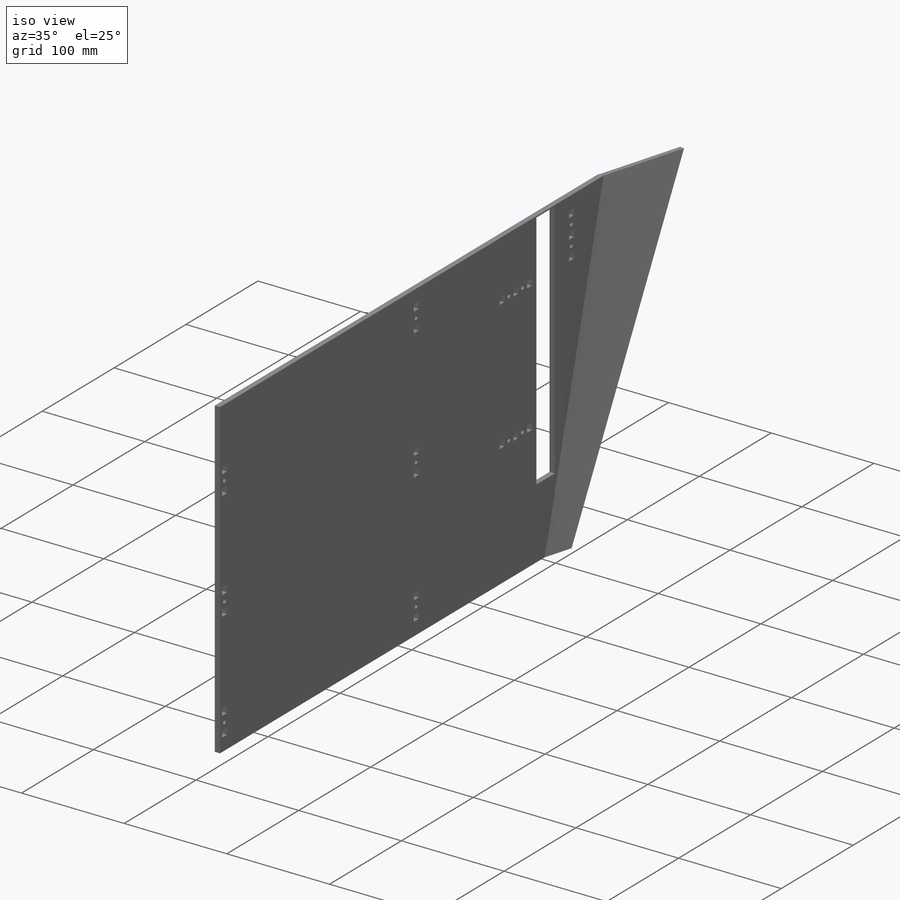
[diagram: iso view]
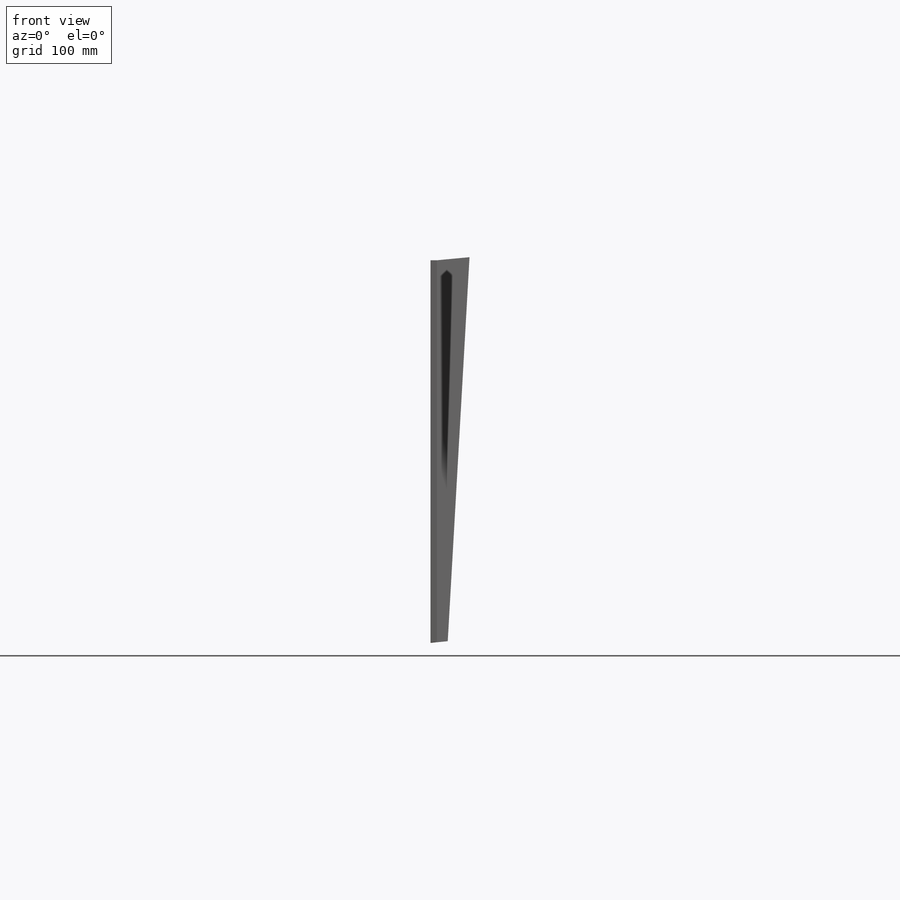
[diagram: front view]
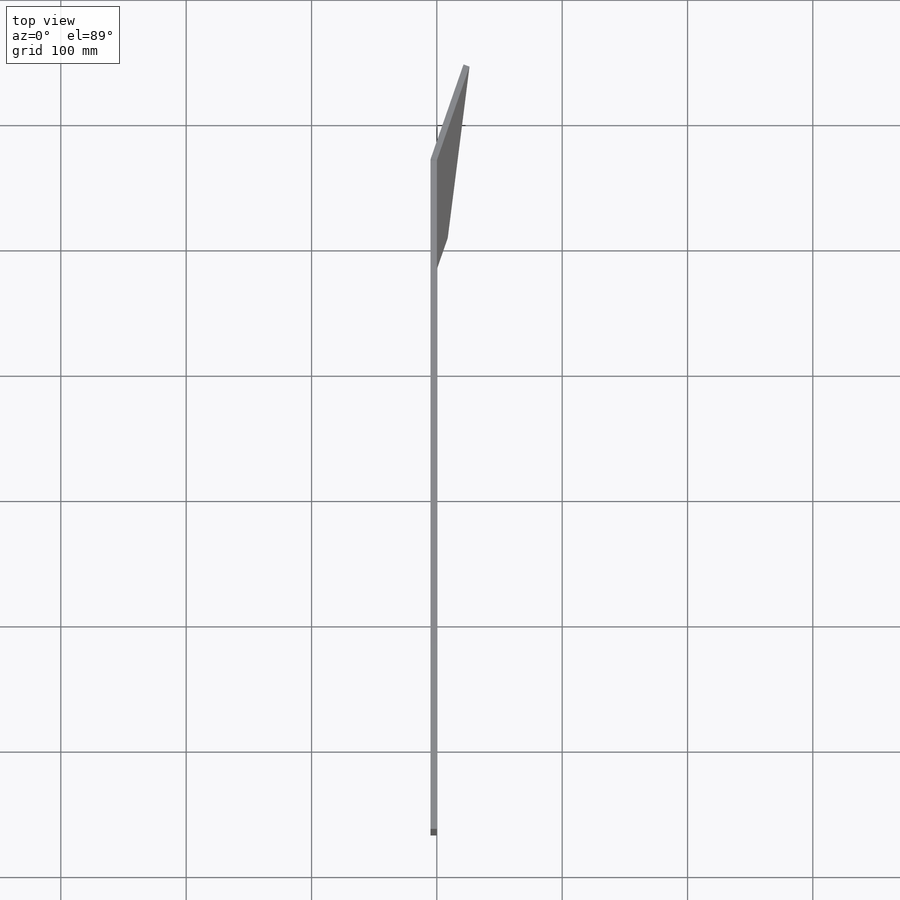
[diagram: top view]
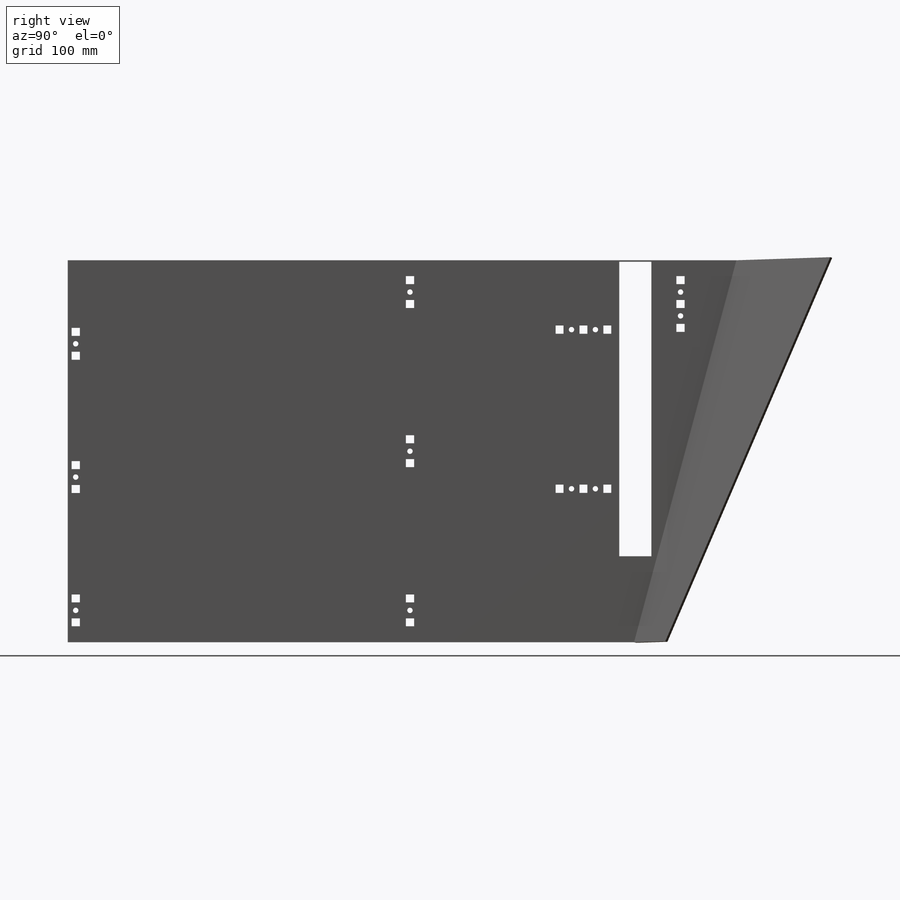
[diagram: right view]
SOLIDWORKS PART (.sldprt)
format: sldprt  version: not decoded by parser v0  size: 1,226,240 bytes
history: native  units: mm
features: sketch x15, sheet_metal_op x6, hole x4, material x1, cut_extrude x1 + 2 further entries (+12 scaffold rows collapsed; 4 parser-record rows omitted)
feature tree (45):
  scaffold x12  (default folders/planes/origin — collapsed)
  material  "Delrin 2700 NC010, Low Viscosity Acetal Copolymer (SS)"
  sketch  "Sketch1"  dims[c1.D1=914.4mm c1.D2=355.6mm c1.D3=~17.921975mm c2.D3=~146.309932deg c3.D3=~2617.993878mm c3.D4=260.35mm c3.D5=304.8mm c3.D6=101.6mm c3.D7=25.4mm c3.D8=914.4mm c4.D7=50.8mm c4.D8=~87.988181mm c4.D1=914.4mm c4.D9=~294.278976mm c5.D1=355.6mm c5.D2=355.6mm c5.D9=~1061.750972mm c5.D3=~785.398163mm c5.D6=330.2mm c5.D8=254.0mm c5.D10=6.35mm c5.D11=330.2mm c5.D12=79.375mm c5.D13=254.0mm c6.D3=~785.398163mm c6.D7=44.45mm c6.D14=12.7mm c6.D15=~90.200972mm c6.D9=1023.9502mm c7.D15=~37.052537mm c7.D2=~1308.996939mm c7.D3=603.25mm c7.D4=6.35mm c7.D6=~392.699082mm c8.D3=673.1mm c8.D7=25.4mm c8.D8=25.654mm c8.D9=234.95mm c8.D10=1.27mm c8.D14=30.48mm c9.D3=533.4mm c9.D6=~386.151013mm c9.D1=0.7366mm c9.D2=0.5 c10.D3=0.0deg c10.D6=~28.64789deg]
  sheet_metal_op  "Base-Flange1"
  sketch  "Sketch9"  dims[D1=4.3053mm D2=6.35mm D3=6.604mm D4=12.7mm BOLT_HOLE_2X-2=0.0 BOLT_HOLE-1=0.0]
  sheet_metal_op  "BOLT_HOLE"  BOLT_HOLE-2=0 BOLT_HOLE-3=0 BOLT_HOLE-4=0 BOLT_HOLE-5=0 BOLT_HOLE-6=0 BOLT_HOLE_2X-5=0
  cut_extrude  "Cut-Extrude1"  [1 undecoded]
  sketch  "Sketch8"  dims[c1.D1=~174.532925mm c1.D2=76.2mm c2.D1=25.4mm c2.D2=76.2mm c3.D1=0.7366mm c3.D4=~349.06585mm c3.D5=1.0 c3.D8=~0.136436deg c3.D9=~0.136436deg c4.D1=0.7366mm c4.D2=~28.64789deg c4.D3=0.0deg c4.D6=10.0mm c4.D7=76.2mm]
  hole  "CSK for #8 Flat Head Socket Cap Screw2"  Diameter=4.3053mm Depth=31.141935mm
  sketch  "Sketch14"
  sketch  "Sketch13"  dims[hole-wizard template sketch: 40 standard entries collapsed; hole parameters kept: c6.Thru Hole Dia.=4.3053mm c6.Thru Hole Depth=~31.141935mm c6.Near C'Sink Dia.=9.1186mm c6.Near C'Sink Angle=~1431.169987mm]  [1 undecoded]
  sketch  "Bend-Lines1"
  sketch  "Bounding-Box1"  dims[D1=0.0508mm]
  sheet_metal_op  "Sheet-Metal(7)"
  "Flat-Pattern(7)"
  sketch  "Bend-Lines2"
  sketch  "Bounding-Box2"
  parser-record x4  (decoder bookkeeping rows leaked as tree rows — omitted from the tree; the rows remain in map.json)
  hole  "Sheet-Metal(8)"  Diameter=0.7366mm
  sheet_metal_op  "Flat-Pattern(7)"
  sketch  "Bend-Lines2"
  sketch  "Bounding-Box2"
  hole  "Sheet-Metal(9)"  Diameter=0.7366mm
  sheet_metal_op  "Flat-Pattern(7)"
  sketch  "Bend-Lines2"
  sketch  "Bounding-Box2"
  hole  "Sheet-Metal(11)"  Diameter=0.7366mm
  sheet_metal_op  "Flat-Pattern(7)"
  sketch  "Bend-Lines2"
  sketch  "Bounding-Box2"
  "Flatten-<EdgeBend1>1"
decode coverage: 10 of 26 modeling features carry decoded parameters; 2 rows unclassified (native names shown)
note: ~ marks probable driven/reference dimensions
note: 1 parameter value undecoded
note: suppression state not decoded; provenance and decode notes live in map.json
note: 1 required parameter value undecoded (feature->parameter linkage not recoverable at this tier; creation-order binding heuristic only, values carry confidence <= 0.55)
